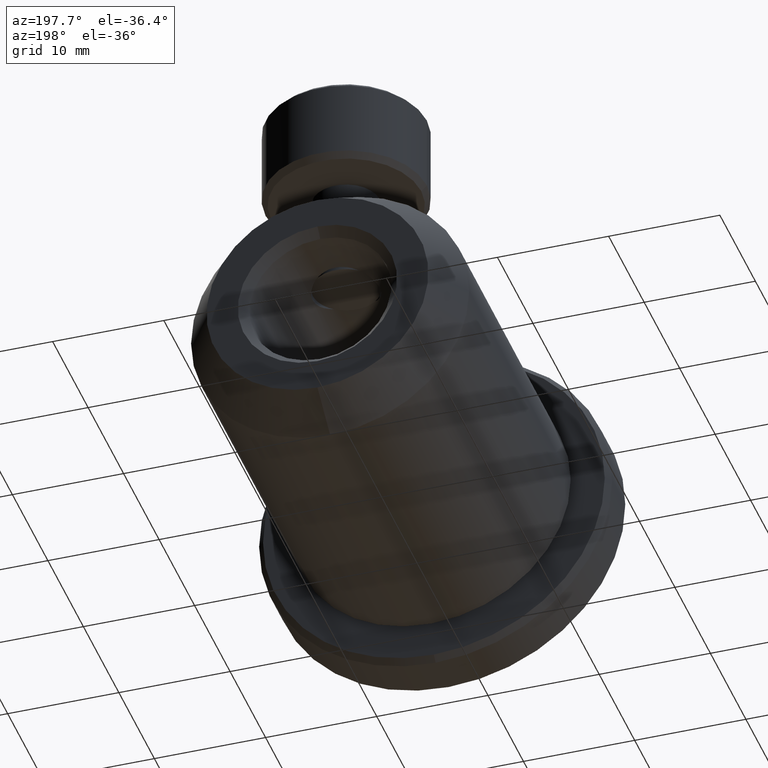
[diagram: clean part render]
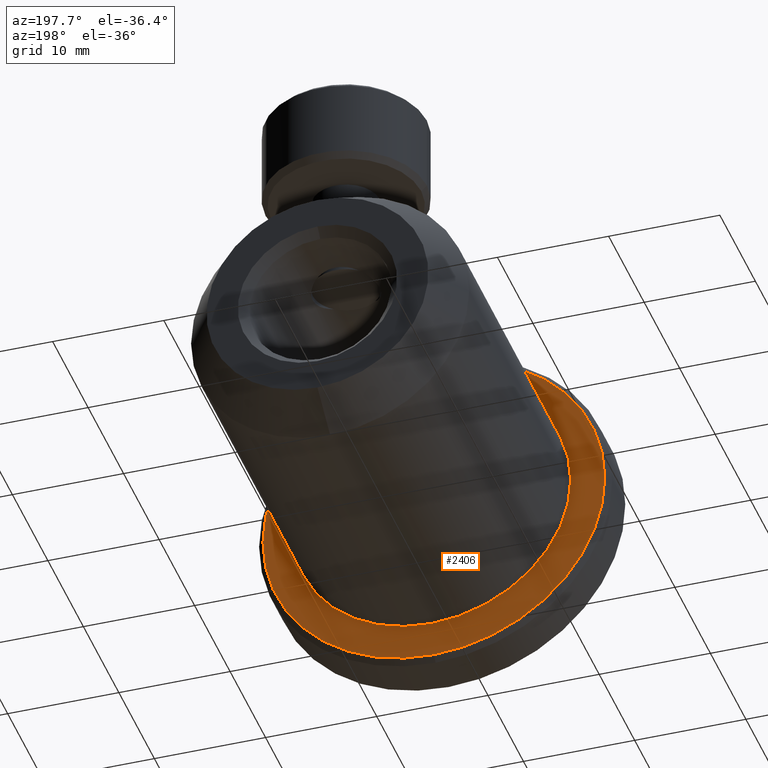
[diagram: same view with one face highlighted and labeled with its STEP entity id]
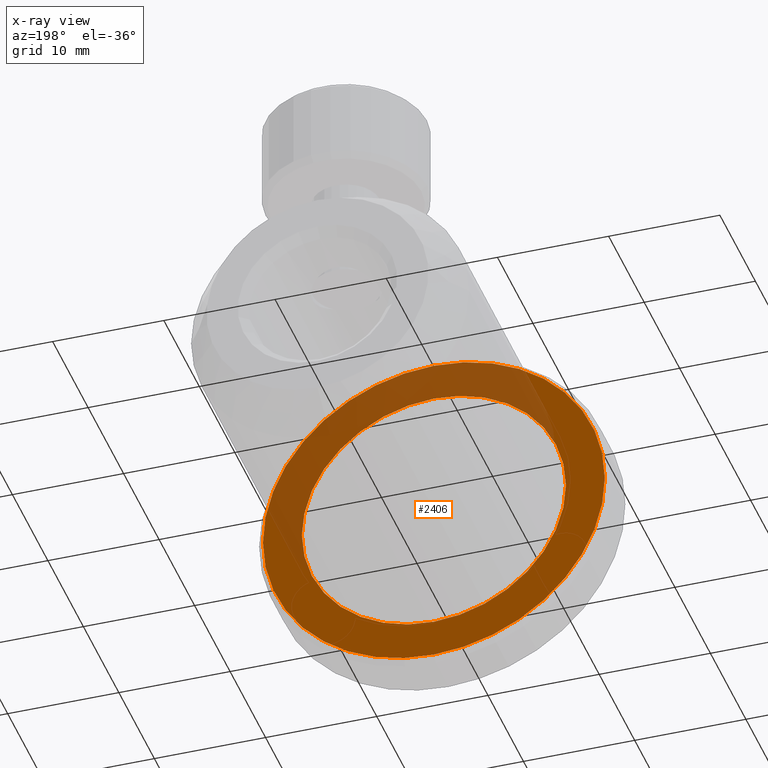
[diagram: x-ray of the same camera — body ghosted, the highlighted face saturated]
A machine part, auxiliary view. The second image highlights one B-rep face of the part: STEP entity #2406.
The next image is the same camera in x-ray: the body ghosted, the highlighted face saturated — about 38% of this face is hidden behind the body in this view.
In plain terms, the highlighted planar face has unit normal (0, 1, 0).
Its self-contained STEP definition (entity closure, byte-faithful):
#100 = EDGE_CURVE ( 'NONE', #947, #296, #1071, .T. ) ;
#296 = VERTEX_POINT ( 'NONE', #760 ) ;
#324 = DIRECTION ( 'NONE',  ( 0.0000000000000000000, 0.0000000000000000000, 1.000000000000000000 ) ) ;
#371 = AXIS2_PLACEMENT_3D ( 'NONE', #2759, #1098, #3517 ) ;
#408 = DIRECTION ( 'NONE',  ( 0.0000000000000000000, 0.0000000000000000000, -1.000000000000000000 ) ) ;
#556 = ORIENTED_EDGE ( 'NONE', *, *, #3164, .F. ) ;
#760 = CARTESIAN_POINT ( 'NONE',  ( -16.77690416192945100, -14.84883156452665200, -3.521036400955010600 ) ) ;
#789 = ORIENTED_EDGE ( 'NONE', *, *, #867, .F. ) ;
#798 = AXIS2_PLACEMENT_3D ( 'NONE', #3487, #2966, #1312 ) ;
#867 = EDGE_CURVE ( 'NONE', #1376, #2828, #1753, .T. ) ;
#947 = VERTEX_POINT ( 'NONE', #3137 ) ;
#1071 = CIRCLE ( 'NONE', #2628, 15.36700000000000100 ) ;
#1098 = DIRECTION ( 'NONE',  ( -0.0000000000000000000, -1.000000000000000000, -0.0000000000000000000 ) ) ;
#1128 = EDGE_LOOP ( 'NONE', ( #789, #556 ) ) ;
#1312 = DIRECTION ( 'NONE',  ( 0.0000000000000000000, -0.0000000000000000000, 1.000000000000000000 ) ) ;
#1376 = VERTEX_POINT ( 'NONE', #3455 ) ;
#1439 = DIRECTION ( 'NONE',  ( -0.0000000000000000000, 1.000000000000000000, -0.0000000000000000000 ) ) ;
#1634 = ORIENTED_EDGE ( 'NONE', *, *, #100, .F. ) ;
#1753 = CIRCLE ( 'NONE', #2050, 11.87162460249725600 ) ;
#1873 = DIRECTION ( 'NONE',  ( -0.0000000000000000000, 1.000000000000000000, -0.0000000000000000000 ) ) ;
#2050 = AXIS2_PLACEMENT_3D ( 'NONE', #3090, #1439, #324 ) ;
#2107 = CARTESIAN_POINT ( 'NONE',  ( -16.77690416192945100, -14.84883156452665200, 11.84596359904499100 ) ) ;
#2397 = FACE_BOUND ( 'NONE', #1128, .T. ) ;
#2406 = ADVANCED_FACE ( 'NONE', ( #2397, #2933 ), #3222, .T. ) ;
#2415 = EDGE_CURVE ( 'NONE', #296, #947, #3012, .T. ) ;
#2591 = AXIS2_PLACEMENT_3D ( 'NONE', #2678, #1873, #2698 ) ;
#2628 = AXIS2_PLACEMENT_3D ( 'NONE', #2107, #3439, #408 ) ;
#2678 = CARTESIAN_POINT ( 'NONE',  ( -16.77690416192938400, -14.84883156452665200, 11.84600000000000000 ) ) ;
#2698 = DIRECTION ( 'NONE',  ( 0.0000000000000000000, 0.0000000000000000000, 1.000000000000000000 ) ) ;
#2759 = CARTESIAN_POINT ( 'NONE',  ( -16.77690416192945100, -14.84883156452665200, 11.84596359904499100 ) ) ;
#2828 = VERTEX_POINT ( 'NONE', #3307 ) ;
#2933 = FACE_OUTER_BOUND ( 'NONE', #3241, .T. ) ;
#2966 = DIRECTION ( 'NONE',  ( 0.0000000000000000000, 1.000000000000000000, 0.0000000000000000000 ) ) ;
#3012 = CIRCLE ( 'NONE', #371, 15.36700000000000100 ) ;
#3043 = ORIENTED_EDGE ( 'NONE', *, *, #2415, .F. ) ;
#3090 = CARTESIAN_POINT ( 'NONE',  ( -16.77690416192938400, -14.84883156452665200, 11.84600000000000000 ) ) ;
#3137 = CARTESIAN_POINT ( 'NONE',  ( -16.77690416192944800, -14.84883156452665200, 27.21296359904499000 ) ) ;
#3164 = EDGE_CURVE ( 'NONE', #2828, #1376, #3420, .T. ) ;
#3222 = PLANE ( 'NONE',  #798 ) ;
#3241 = EDGE_LOOP ( 'NONE', ( #3043, #1634 ) ) ;
#3307 = CARTESIAN_POINT ( 'NONE',  ( -16.77690416192938400, -14.84883156452665200, -0.02562460249725534400 ) ) ;
#3420 = CIRCLE ( 'NONE', #2591, 11.87162460249725600 ) ;
#3439 = DIRECTION ( 'NONE',  ( -0.0000000000000000000, -1.000000000000000000, -0.0000000000000000000 ) ) ;
#3455 = CARTESIAN_POINT ( 'NONE',  ( -16.77690416192938400, -14.84883156452665200, 23.71762460249725600 ) ) ;
#3487 = CARTESIAN_POINT ( 'NONE',  ( -1.409904161929450800, -14.84883156452665200, 11.84596359904499100 ) ) ;
#3517 = DIRECTION ( 'NONE',  ( 0.0000000000000000000, 0.0000000000000000000, -1.000000000000000000 ) ) ;